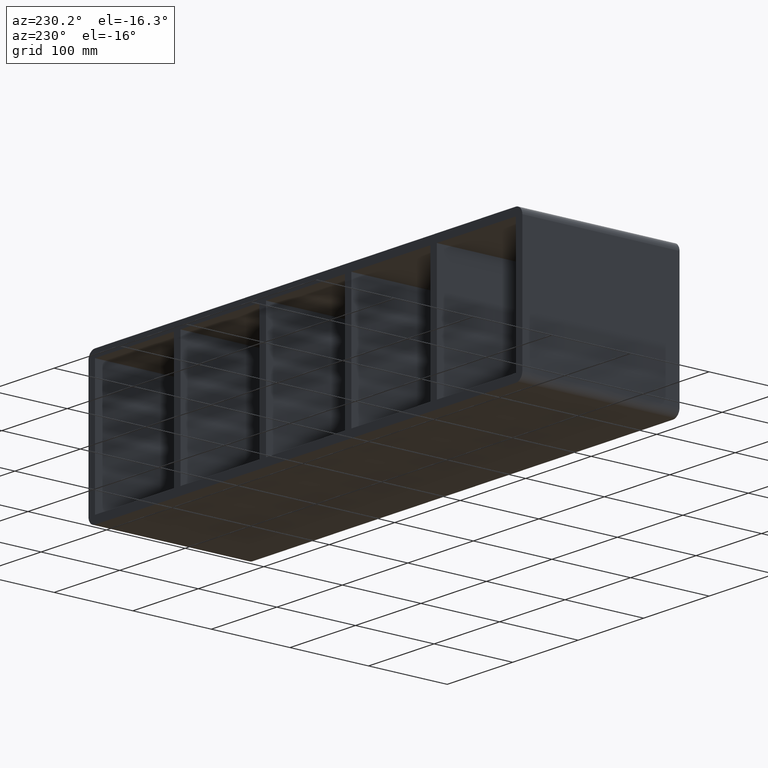
[diagram: clean part render]
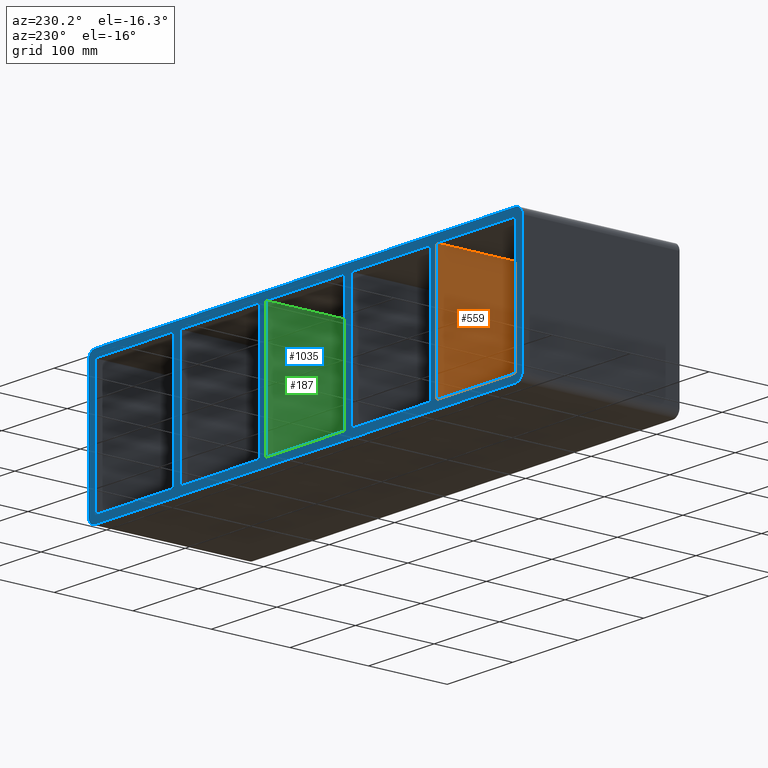
[diagram: same view with three faces highlighted in distinct colors, each labeled with its STEP entity id]
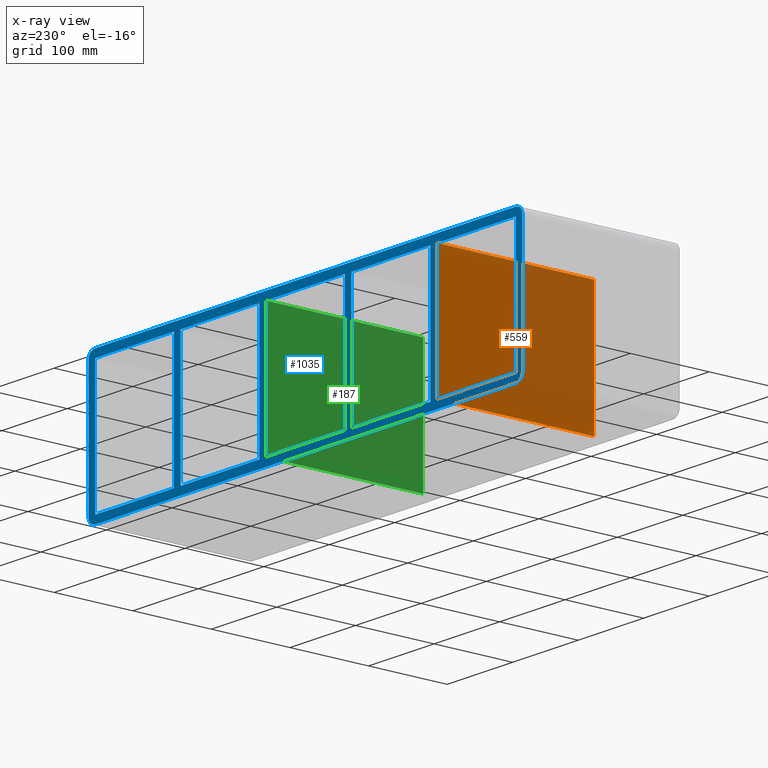
[diagram: x-ray of the same camera — body ghosted, the three highlighted faces saturated]
A machine part, auxiliary view with three faces highlighted in distinct colors.
The next image is the same camera in x-ray (body ghosted, the three faces saturated) — at least one of them is partly hidden behind the body in this view.
Their STEP definitions:

[orange] entity #559 — the highlighted planar face has unit normal (-1, 0, 0).
#520=CARTESIAN_POINT('',(-200.75000000000125,-3.0,-79.750000000000014));
#521=DIRECTION('',(-1.0,0.0,0.0));
#522=DIRECTION('',(0.0,0.0,1.0));
#523=AXIS2_PLACEMENT_3D('',#520,#521,#522);
#524=PLANE('',#523);
#525=CARTESIAN_POINT('',(-200.75000000000125,-3.0,-79.750000000000014));
#526=VERTEX_POINT('',#525);
#527=CARTESIAN_POINT('',(-200.75000000000125,-3.0,79.750000000000014));
#528=VERTEX_POINT('',#527);
#529=CARTESIAN_POINT('',(-200.75000000000125,-3.0,-79.750000000000014));
#530=DIRECTION('',(0.0,0.0,1.0));
#531=VECTOR('',#530,159.50000000000003);
#532=LINE('',#529,#531);
#533=EDGE_CURVE('',#526,#528,#532,.T.);
#534=ORIENTED_EDGE('',*,*,#533,.T.);
#535=CARTESIAN_POINT('',(-200.75000000000125,197.0,79.750000000000014));
#536=VERTEX_POINT('',#535);
#537=CARTESIAN_POINT('',(-200.75000000000125,196.99999999999997,79.750000000000014));
#538=DIRECTION('',(0.0,-1.0,0.0));
#539=VECTOR('',#538,199.99999999999997);
#540=LINE('',#537,#539);
#541=EDGE_CURVE('',#536,#528,#540,.T.);
#542=ORIENTED_EDGE('',*,*,#541,.F.);
#543=CARTESIAN_POINT('',(-200.75000000000125,197.0,-79.750000000000014));
#544=VERTEX_POINT('',#543);
#545=CARTESIAN_POINT('',(-200.75000000000125,197.0,-79.750000000000014));
#546=DIRECTION('',(0.0,0.0,1.0));
#547=VECTOR('',#546,159.50000000000003);
#548=LINE('',#545,#547);
#549=EDGE_CURVE('',#544,#536,#548,.T.);
#550=ORIENTED_EDGE('',*,*,#549,.F.);
#551=CARTESIAN_POINT('',(-200.75000000000125,-3.0,-79.750000000000014));
#552=DIRECTION('',(0.0,1.0,0.0));
#553=VECTOR('',#552,199.99999999999997);
#554=LINE('',#551,#553);
#555=EDGE_CURVE('',#526,#544,#554,.T.);
#556=ORIENTED_EDGE('',*,*,#555,.F.);
#557=EDGE_LOOP('',(#534,#542,#550,#556));
#558=FACE_OUTER_BOUND('',#557,.T.);
#559=ADVANCED_FACE('',(#558),#524,.T.);

[blue] entity #1035 — the highlighted planar face has unit normal (0, 1, 0).
#83=CARTESIAN_POINT('',(190.74999999999881,197.0,79.750000000000014));
#84=VERTEX_POINT('',#83);
#91=CARTESIAN_POINT('',(190.74999999999881,197.0,-79.750000000000014));
#92=VERTEX_POINT('',#91);
#93=CARTESIAN_POINT('',(190.74999999999881,197.0,-79.750000000000014));
#94=DIRECTION('',(0.0,0.0,1.0));
#95=VECTOR('',#94,159.50000000000003);
#96=LINE('',#93,#95);
#97=EDGE_CURVE('',#92,#84,#96,.T.);
#123=CARTESIAN_POINT('',(200.74999999999278,197.0,-79.749999999971493));
#124=VERTEX_POINT('',#123);
#131=CARTESIAN_POINT('',(200.74999999999278,197.0,79.750000000000014));
#132=VERTEX_POINT('',#131);
#133=CARTESIAN_POINT('',(200.74999999999278,197.0,79.750000000000014));
#134=DIRECTION('',(0.0,0.0,-1.0));
#135=VECTOR('',#134,159.49999999997149);
#136=LINE('',#133,#135);
#137=EDGE_CURVE('',#132,#124,#136,.T.);
#163=CARTESIAN_POINT('',(60.249999999998778,197.0,79.750000000000014));
#164=VERTEX_POINT('',#163);
#171=CARTESIAN_POINT('',(60.249999999998778,197.0,-79.750000000000014));
#172=VERTEX_POINT('',#171);
#173=CARTESIAN_POINT('',(60.249999999998778,197.0,-79.750000000000014));
#174=DIRECTION('',(0.0,0.0,1.0));
#175=VECTOR('',#174,159.50000000000003);
#176=LINE('',#173,#175);
#177=EDGE_CURVE('',#172,#164,#176,.T.);
#203=CARTESIAN_POINT('',(70.249999999992738,197.0,-79.749999999971493));
#204=VERTEX_POINT('',#203);
#211=CARTESIAN_POINT('',(70.249999999992738,197.0,79.750000000000014));
#212=VERTEX_POINT('',#211);
#213=CARTESIAN_POINT('',(70.249999999992738,197.0,79.750000000000014));
#214=DIRECTION('',(0.0,0.0,-1.0));
#215=VECTOR('',#214,159.49999999997149);
#216=LINE('',#213,#215);
#217=EDGE_CURVE('',#212,#204,#216,.T.);
#243=CARTESIAN_POINT('',(-70.250000000001222,197.0,79.750000000000014));
#244=VERTEX_POINT('',#243);
#251=CARTESIAN_POINT('',(-70.250000000001222,197.0,-79.750000000000014));
#252=VERTEX_POINT('',#251);
#253=CARTESIAN_POINT('',(-70.250000000001222,197.0,-79.750000000000014));
#254=DIRECTION('',(0.0,0.0,1.0));
#255=VECTOR('',#254,159.50000000000003);
#256=LINE('',#253,#255);
#257=EDGE_CURVE('',#252,#244,#256,.T.);
#283=CARTESIAN_POINT('',(-60.250000000007269,197.0,-79.749999999971493));
#284=VERTEX_POINT('',#283);
#291=CARTESIAN_POINT('',(-60.250000000007269,197.0,79.750000000000014));
#292=VERTEX_POINT('',#291);
#293=CARTESIAN_POINT('',(-60.250000000007269,197.0,79.750000000000014));
#294=DIRECTION('',(0.0,0.0,-1.0));
#295=VECTOR('',#294,159.49999999997149);
#296=LINE('',#293,#295);
#297=EDGE_CURVE('',#292,#284,#296,.T.);
#314=CARTESIAN_POINT('',(-190.75000000000728,197.0,-79.749999999971493));
#315=VERTEX_POINT('',#314);
#316=CARTESIAN_POINT('',(-190.75000000000728,197.0,-79.750000000000014));
#317=DIRECTION('',(1.0,0.0,0.0));
#318=VECTOR('',#317,120.50000000000605);
#319=LINE('',#316,#318);
#320=EDGE_CURVE('',#315,#252,#319,.T.);
#345=CARTESIAN_POINT('',(-60.250000000007276,197.0,-79.750000000000014));
#346=DIRECTION('',(1.0,0.0,0.0));
#347=VECTOR('',#346,120.50000000000605);
#348=LINE('',#345,#347);
#349=EDGE_CURVE('',#284,#172,#348,.T.);
#367=CARTESIAN_POINT('',(70.249999999992738,197.0,-79.750000000000014));
#368=DIRECTION('',(1.0,0.0,0.0));
#369=VECTOR('',#368,120.50000000000607);
#370=LINE('',#367,#369);
#371=EDGE_CURVE('',#204,#92,#370,.T.);
#397=CARTESIAN_POINT('',(321.25,197.0,-79.750000000000014));
#398=VERTEX_POINT('',#397);
#405=CARTESIAN_POINT('',(200.74999999999278,197.0,-79.750000000000014));
#406=DIRECTION('',(1.0,0.0,0.0));
#407=VECTOR('',#406,120.50000000000722);
#408=LINE('',#405,#407);
#409=EDGE_CURVE('',#124,#398,#408,.T.);
#428=CARTESIAN_POINT('',(-190.75000000000728,197.0,79.750000000000014));
#429=VERTEX_POINT('',#428);
#436=CARTESIAN_POINT('',(-70.250000000001222,197.0,79.750000000000014));
#437=DIRECTION('',(-1.0,0.0,0.0));
#438=VECTOR('',#437,120.50000000000605);
#439=LINE('',#436,#438);
#440=EDGE_CURVE('',#244,#429,#439,.T.);
#458=CARTESIAN_POINT('',(60.249999999998778,197.0,79.750000000000014));
#459=DIRECTION('',(-1.0,0.0,0.0));
#460=VECTOR('',#459,120.50000000000605);
#461=LINE('',#458,#460);
#462=EDGE_CURVE('',#164,#292,#461,.T.);
#473=CARTESIAN_POINT('',(321.25,197.0,79.750000000000014));
#474=VERTEX_POINT('',#473);
#475=CARTESIAN_POINT('',(321.25,197.0,79.750000000000014));
#476=DIRECTION('',(-1.0,0.0,0.0));
#477=VECTOR('',#476,120.50000000000722);
#478=LINE('',#475,#477);
#479=EDGE_CURVE('',#474,#132,#478,.T.);
#511=CARTESIAN_POINT('',(190.74999999999881,197.0,79.750000000000014));
#512=DIRECTION('',(-1.0,0.0,0.0));
#513=VECTOR('',#512,120.50000000000608);
#514=LINE('',#511,#513);
#515=EDGE_CURVE('',#84,#212,#514,.T.);
#535=CARTESIAN_POINT('',(-200.75000000000125,197.0,79.750000000000014));
#536=VERTEX_POINT('',#535);
#543=CARTESIAN_POINT('',(-200.75000000000125,197.0,-79.750000000000014));
#544=VERTEX_POINT('',#543);
#545=CARTESIAN_POINT('',(-200.75000000000125,197.0,-79.750000000000014));
#546=DIRECTION('',(0.0,0.0,1.0));
#547=VECTOR('',#546,159.50000000000003);
#548=LINE('',#545,#547);
#549=EDGE_CURVE('',#544,#536,#548,.T.);
#572=CARTESIAN_POINT('',(-190.75000000000728,197.0,79.750000000000014));
#573=DIRECTION('',(0.0,0.0,-1.0));
#574=VECTOR('',#573,159.49999999997149);
#575=LINE('',#572,#574);
#576=EDGE_CURVE('',#429,#315,#575,.T.);
#588=CARTESIAN_POINT('',(-321.25,197.0,-79.750000000000014));
#589=VERTEX_POINT('',#588);
#590=CARTESIAN_POINT('',(-321.25,197.0,-79.750000000000014));
#591=DIRECTION('',(1.0,0.0,0.0));
#592=VECTOR('',#591,120.49999999999875);
#593=LINE('',#590,#592);
#594=EDGE_CURVE('',#589,#544,#593,.T.);
#627=CARTESIAN_POINT('',(-321.25,197.0,79.750000000000014));
#628=VERTEX_POINT('',#627);
#635=CARTESIAN_POINT('',(-200.75000000000125,197.0,79.750000000000014));
#636=DIRECTION('',(-1.0,0.0,0.0));
#637=VECTOR('',#636,120.49999999999875);
#638=LINE('',#635,#637);
#639=EDGE_CURVE('',#536,#628,#638,.T.);
#649=CARTESIAN_POINT('',(-331.25,197.0,-79.75));
#650=VERTEX_POINT('',#649);
#651=CARTESIAN_POINT('',(-321.25,197.0,-89.75));
#652=VERTEX_POINT('',#651);
#653=CARTESIAN_POINT('',(-321.25,197.0,-79.75));
#654=DIRECTION('',(0.0,-1.0,0.0));
#655=DIRECTION('',(-0.707106781186547,0.0,-0.707106781186547));
#656=AXIS2_PLACEMENT_3D('',#653,#654,#655);
#657=CIRCLE('',#656,9.999999999999998);
#658=EDGE_CURVE('',#650,#652,#657,.T.);
#798=CARTESIAN_POINT('',(321.25,197.0,-89.75));
#799=VERTEX_POINT('',#798);
#800=CARTESIAN_POINT('',(321.25,197.0,-89.75));
#801=DIRECTION('',(-1.0,0.0,0.0));
#802=VECTOR('',#801,642.5);
#803=LINE('',#800,#802);
#804=EDGE_CURVE('',#799,#652,#803,.T.);
#821=CARTESIAN_POINT('',(331.25,197.0,-79.75));
#822=VERTEX_POINT('',#821);
#823=CARTESIAN_POINT('',(321.25,197.0,-79.75));
#824=DIRECTION('',(0.0,-1.0,0.0));
#825=DIRECTION('',(0.707106781186547,0.0,-0.707106781186547));
#826=AXIS2_PLACEMENT_3D('',#823,#824,#825);
#827=CIRCLE('',#826,9.999999999999998);
#828=EDGE_CURVE('',#799,#822,#827,.T.);
#847=CARTESIAN_POINT('',(331.25,197.0,79.750000000000028));
#848=VERTEX_POINT('',#847);
#855=CARTESIAN_POINT('',(321.25,197.0,89.750000000000028));
#856=VERTEX_POINT('',#855);
#857=CARTESIAN_POINT('',(321.25,197.0,79.750000000000028));
#858=DIRECTION('',(0.0,-1.0,0.0));
#859=DIRECTION('',(0.707106781186547,0.0,0.707106781186547));
#860=AXIS2_PLACEMENT_3D('',#857,#858,#859);
#861=CIRCLE('',#860,9.999999999999998);
#862=EDGE_CURVE('',#848,#856,#861,.T.);
#879=CARTESIAN_POINT('',(-321.25,197.0,89.750000000000028));
#880=VERTEX_POINT('',#879);
#881=CARTESIAN_POINT('',(-321.25,197.0,89.750000000000028));
#882=DIRECTION('',(1.0,0.0,0.0));
#883=VECTOR('',#882,642.5);
#884=LINE('',#881,#883);
#885=EDGE_CURVE('',#880,#856,#884,.T.);
#902=CARTESIAN_POINT('',(-331.25,197.0,79.750000000000028));
#903=VERTEX_POINT('',#902);
#904=CARTESIAN_POINT('',(-321.25,197.0,79.750000000000028));
#905=DIRECTION('',(0.0,-1.0,0.0));
#906=DIRECTION('',(-0.707106781186547,0.0,0.707106781186547));
#907=AXIS2_PLACEMENT_3D('',#904,#905,#906);
#908=CIRCLE('',#907,9.999999999999998);
#909=EDGE_CURVE('',#880,#903,#908,.T.);
#930=CARTESIAN_POINT('',(321.25,197.0,-79.750000000000014));
#931=DIRECTION('',(0.0,0.0,1.0));
#932=VECTOR('',#931,159.50000000000003);
#933=LINE('',#930,#932);
#934=EDGE_CURVE('',#398,#474,#933,.T.);
#947=CARTESIAN_POINT('',(-321.25,197.0,79.750000000000028));
#948=DIRECTION('',(0.0,0.0,-1.0));
#949=VECTOR('',#948,159.50000000000006);
#950=LINE('',#947,#949);
#951=EDGE_CURVE('',#628,#589,#950,.T.);
#964=CARTESIAN_POINT('',(-331.25,197.0,-79.75));
#965=DIRECTION('',(0.0,0.0,1.0));
#966=VECTOR('',#965,159.50000000000003);
#967=LINE('',#964,#966);
#968=EDGE_CURVE('',#650,#903,#967,.T.);
#979=CARTESIAN_POINT('',(331.25,197.0,79.750000000000028));
#980=DIRECTION('',(0.0,0.0,-1.0));
#981=VECTOR('',#980,159.50000000000003);
#982=LINE('',#979,#981);
#983=EDGE_CURVE('',#848,#822,#982,.T.);
#990=CARTESIAN_POINT('',(0.0,197.0,1.518975E-014));
#991=DIRECTION('',(0.0,1.0,0.0));
#992=DIRECTION('',(0.0,0.0,1.0));
#993=AXIS2_PLACEMENT_3D('',#990,#991,#992);
#994=PLANE('',#993);
#995=ORIENTED_EDGE('',*,*,#658,.F.);
#996=ORIENTED_EDGE('',*,*,#968,.T.);
#997=ORIENTED_EDGE('',*,*,#909,.F.);
#998=ORIENTED_EDGE('',*,*,#885,.T.);
#999=ORIENTED_EDGE('',*,*,#862,.F.);
#1000=ORIENTED_EDGE('',*,*,#983,.T.);
#1001=ORIENTED_EDGE('',*,*,#828,.F.);
#1002=ORIENTED_EDGE('',*,*,#804,.T.);
#1003=EDGE_LOOP('',(#995,#996,#997,#998,#999,#1000,#1001,#1002));
#1004=FACE_OUTER_BOUND('',#1003,.T.);
#1005=ORIENTED_EDGE('',*,*,#409,.T.);
#1006=ORIENTED_EDGE('',*,*,#934,.T.);
#1007=ORIENTED_EDGE('',*,*,#479,.T.);
#1008=ORIENTED_EDGE('',*,*,#137,.T.);
#1009=EDGE_LOOP('',(#1005,#1006,#1007,#1008));
#1010=FACE_BOUND('',#1009,.T.);
#1011=ORIENTED_EDGE('',*,*,#97,.T.);
#1012=ORIENTED_EDGE('',*,*,#515,.T.);
#1013=ORIENTED_EDGE('',*,*,#217,.T.);
#1014=ORIENTED_EDGE('',*,*,#371,.T.);
#1015=EDGE_LOOP('',(#1011,#1012,#1013,#1014));
#1016=FACE_BOUND('',#1015,.T.);
#1017=ORIENTED_EDGE('',*,*,#177,.T.);
#1018=ORIENTED_EDGE('',*,*,#462,.T.);
#1019=ORIENTED_EDGE('',*,*,#297,.T.);
#1020=ORIENTED_EDGE('',*,*,#349,.T.);
#1021=EDGE_LOOP('',(#1017,#1018,#1019,#1020));
#1022=FACE_BOUND('',#1021,.T.);
#1023=ORIENTED_EDGE('',*,*,#257,.T.);
#1024=ORIENTED_EDGE('',*,*,#440,.T.);
#1025=ORIENTED_EDGE('',*,*,#576,.T.);
#1026=ORIENTED_EDGE('',*,*,#320,.T.);
#1027=EDGE_LOOP('',(#1023,#1024,#1025,#1026));
#1028=FACE_BOUND('',#1027,.T.);
#1029=ORIENTED_EDGE('',*,*,#549,.T.);
#1030=ORIENTED_EDGE('',*,*,#639,.T.);
#1031=ORIENTED_EDGE('',*,*,#951,.T.);
#1032=ORIENTED_EDGE('',*,*,#594,.T.);
#1033=EDGE_LOOP('',(#1029,#1030,#1031,#1032));
#1034=FACE_BOUND('',#1033,.T.);
#1035=ADVANCED_FACE('',(#1004,#1010,#1016,#1022,#1028,#1034),#994,.T.);

[green] entity #187 — the highlighted planar face has unit normal (-1, 0, 0).
#148=CARTESIAN_POINT('',(60.249999999998778,-3.0,-79.750000000000014));
#149=DIRECTION('',(-1.0,0.0,0.0));
#150=DIRECTION('',(0.0,0.0,1.0));
#151=AXIS2_PLACEMENT_3D('',#148,#149,#150);
#152=PLANE('',#151);
#153=CARTESIAN_POINT('',(60.249999999998778,-3.0,-79.750000000000014));
#154=VERTEX_POINT('',#153);
#155=CARTESIAN_POINT('',(60.249999999998778,-3.0,79.750000000000014));
#156=VERTEX_POINT('',#155);
#157=CARTESIAN_POINT('',(60.249999999998778,-3.0,-79.750000000000014));
#158=DIRECTION('',(0.0,0.0,1.0));
#159=VECTOR('',#158,159.50000000000003);
#160=LINE('',#157,#159);
#161=EDGE_CURVE('',#154,#156,#160,.T.);
#162=ORIENTED_EDGE('',*,*,#161,.T.);
#163=CARTESIAN_POINT('',(60.249999999998778,197.0,79.750000000000014));
#164=VERTEX_POINT('',#163);
#165=CARTESIAN_POINT('',(60.249999999998778,196.99999999999997,79.750000000000014));
#166=DIRECTION('',(0.0,-1.0,0.0));
#167=VECTOR('',#166,199.99999999999997);
#168=LINE('',#165,#167);
#169=EDGE_CURVE('',#164,#156,#168,.T.);
#170=ORIENTED_EDGE('',*,*,#169,.F.);
#171=CARTESIAN_POINT('',(60.249999999998778,197.0,-79.750000000000014));
#172=VERTEX_POINT('',#171);
#173=CARTESIAN_POINT('',(60.249999999998778,197.0,-79.750000000000014));
#174=DIRECTION('',(0.0,0.0,1.0));
#175=VECTOR('',#174,159.50000000000003);
#176=LINE('',#173,#175);
#177=EDGE_CURVE('',#172,#164,#176,.T.);
#178=ORIENTED_EDGE('',*,*,#177,.F.);
#179=CARTESIAN_POINT('',(60.249999999998778,-3.0,-79.750000000000014));
#180=DIRECTION('',(0.0,1.0,0.0));
#181=VECTOR('',#180,199.99999999999997);
#182=LINE('',#179,#181);
#183=EDGE_CURVE('',#154,#172,#182,.T.);
#184=ORIENTED_EDGE('',*,*,#183,.F.);
#185=EDGE_LOOP('',(#162,#170,#178,#184));
#186=FACE_OUTER_BOUND('',#185,.T.);
#187=ADVANCED_FACE('',(#186),#152,.T.);